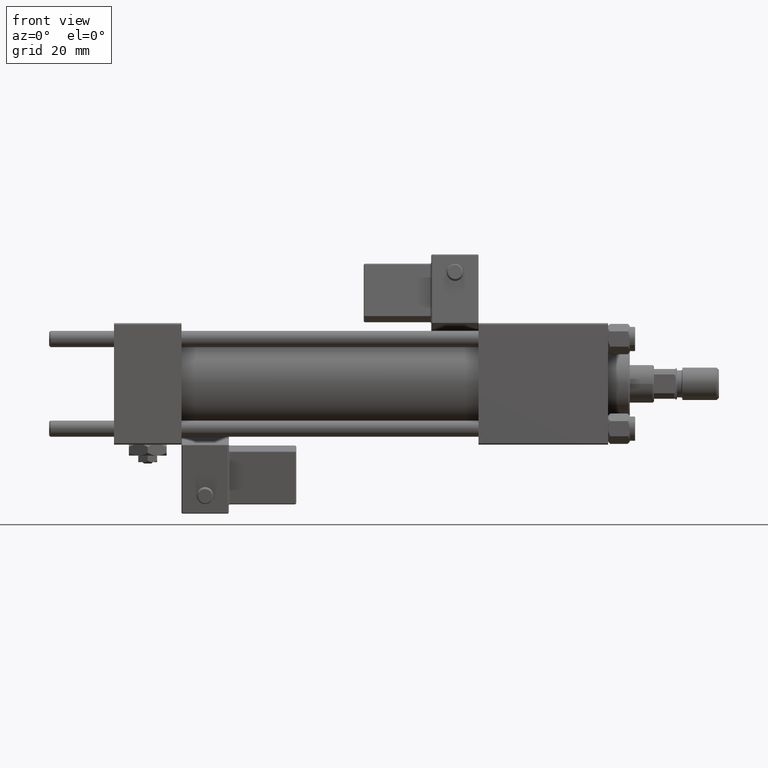
[diagram: clean part render]
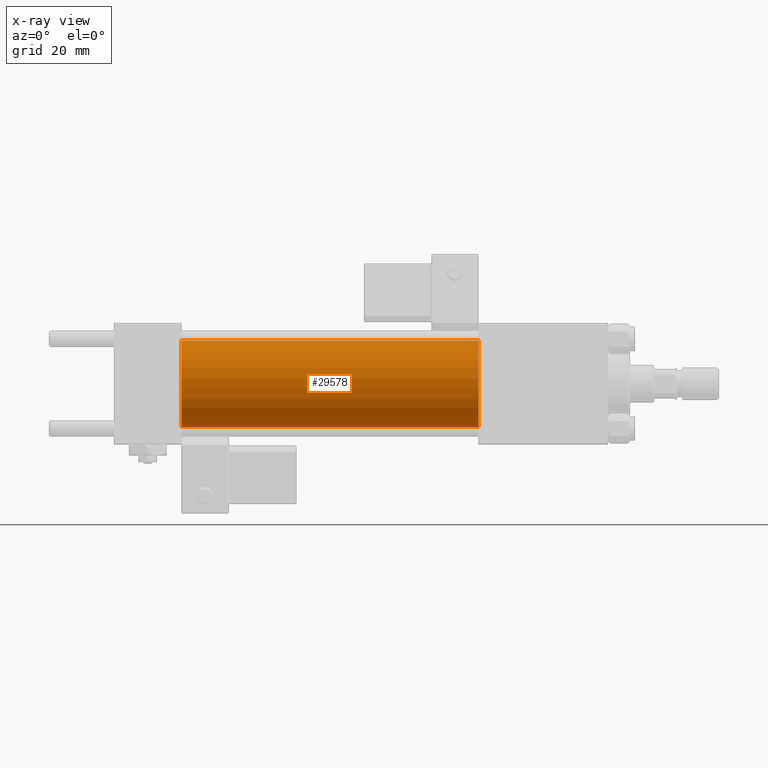
[diagram: x-ray — body ghosted, one internal face saturated and labeled with its STEP entity id]
A machine part, front view, then the same camera in x-ray: the body is ghosted and one INTERNAL B-rep face — a face not visible from any outside direction — is saturated and labeled: STEP entity #29578.
In plain terms, the highlighted cylindrical surface (partial cylindrical patch) has radius 16 mm, axis along (-1, -0, -0).
Its self-contained STEP definition (entity closure, byte-faithful):
#1661 = LINE ( 'NONE', #26969, #37968 ) ;
#1794 = EDGE_CURVE ( 'NONE', #19628, #29491, #15016, .T. ) ;
#5184 = VECTOR ( 'NONE', #9858, 1000.000000000000000 ) ;
#6085 = DIRECTION ( 'NONE',  ( 0.000000000000000000, 0.000000000000000000, 1.000000000000000000 ) ) ;
#6910 = CARTESIAN_POINT ( 'NONE',  ( 135.0000000000000000, 1.959434878635765131E-15, -16.00000000000000000 ) ) ;
#8256 = ORIENTED_EDGE ( 'NONE', *, *, #1794, .T. ) ;
#8770 = CARTESIAN_POINT ( 'NONE',  ( 25.00000000000000000, 0.000000000000000000, 0.000000000000000000 ) ) ;
#9337 = AXIS2_PLACEMENT_3D ( 'NONE', #43725, #35237, #6085 ) ;
#9858 = DIRECTION ( 'NONE',  ( -1.000000000000000000, -0.000000000000000000, -0.000000000000000000 ) ) ;
#12899 = DIRECTION ( 'NONE',  ( 1.000000000000000000, 0.000000000000000000, 0.000000000000000000 ) ) ;
#13717 = ORIENTED_EDGE ( 'NONE', *, *, #46074, .T. ) ;
#14102 = AXIS2_PLACEMENT_3D ( 'NONE', #38646, #18314, #50726 ) ;
#15016 = CIRCLE ( 'NONE', #14102, 16.00000000000000000 ) ;
#15851 = EDGE_LOOP ( 'NONE', ( #8256, #13717, #44469, #30062 ) ) ;
#16213 = DIRECTION ( 'NONE',  ( 0.000000000000000000, 0.000000000000000000, -1.000000000000000000 ) ) ;
#18314 = DIRECTION ( 'NONE',  ( 1.000000000000000000, 0.000000000000000000, 0.000000000000000000 ) ) ;
#18498 = EDGE_CURVE ( 'NONE', #36336, #53752, #20779, .T. ) ;
#19628 = VERTEX_POINT ( 'NONE', #45530 ) ;
#20779 = CIRCLE ( 'NONE', #30417, 16.00000000000000000 ) ;
#21687 = CARTESIAN_POINT ( 'NONE',  ( 135.0000000000000000, 0.000000000000000000, 16.00000000000000000 ) ) ;
#23698 = CYLINDRICAL_SURFACE ( 'NONE', #9337, 16.00000000000000000 ) ;
#26108 = EDGE_CURVE ( 'NONE', #19628, #36336, #47465, .T. ) ;
#26969 = CARTESIAN_POINT ( 'NONE',  ( 135.0000000000000000, 1.959434878635765131E-15, -16.00000000000000000 ) ) ;
#27518 = DIRECTION ( 'NONE',  ( -1.000000000000000000, -0.000000000000000000, -0.000000000000000000 ) ) ;
#27819 = CARTESIAN_POINT ( 'NONE',  ( 25.00000000000000000, 0.000000000000000000, 16.00000000000000000 ) ) ;
#29491 = VERTEX_POINT ( 'NONE', #6910 ) ;
#29578 = ADVANCED_FACE ( 'NONE', ( #48661 ), #23698, .F. ) ;
#30062 = ORIENTED_EDGE ( 'NONE', *, *, #26108, .F. ) ;
#30417 = AXIS2_PLACEMENT_3D ( 'NONE', #8770, #12899, #16213 ) ;
#35237 = DIRECTION ( 'NONE',  ( -1.000000000000000000, -0.000000000000000000, -0.000000000000000000 ) ) ;
#36336 = VERTEX_POINT ( 'NONE', #27819 ) ;
#37968 = VECTOR ( 'NONE', #27518, 1000.000000000000000 ) ;
#38646 = CARTESIAN_POINT ( 'NONE',  ( 135.0000000000000000, 0.000000000000000000, 0.000000000000000000 ) ) ;
#43725 = CARTESIAN_POINT ( 'NONE',  ( 135.0000000000000000, 0.000000000000000000, 0.000000000000000000 ) ) ;
#44243 = CARTESIAN_POINT ( 'NONE',  ( 25.00000000000000000, 1.959434878635765131E-15, -16.00000000000000000 ) ) ;
#44469 = ORIENTED_EDGE ( 'NONE', *, *, #18498, .F. ) ;
#45530 = CARTESIAN_POINT ( 'NONE',  ( 135.0000000000000000, 0.000000000000000000, 16.00000000000000000 ) ) ;
#46074 = EDGE_CURVE ( 'NONE', #29491, #53752, #1661, .T. ) ;
#47465 = LINE ( 'NONE', #21687, #5184 ) ;
#48661 = FACE_OUTER_BOUND ( 'NONE', #15851, .T. ) ;
#50726 = DIRECTION ( 'NONE',  ( 0.000000000000000000, 0.000000000000000000, -1.000000000000000000 ) ) ;
#53752 = VERTEX_POINT ( 'NONE', #44243 ) ;